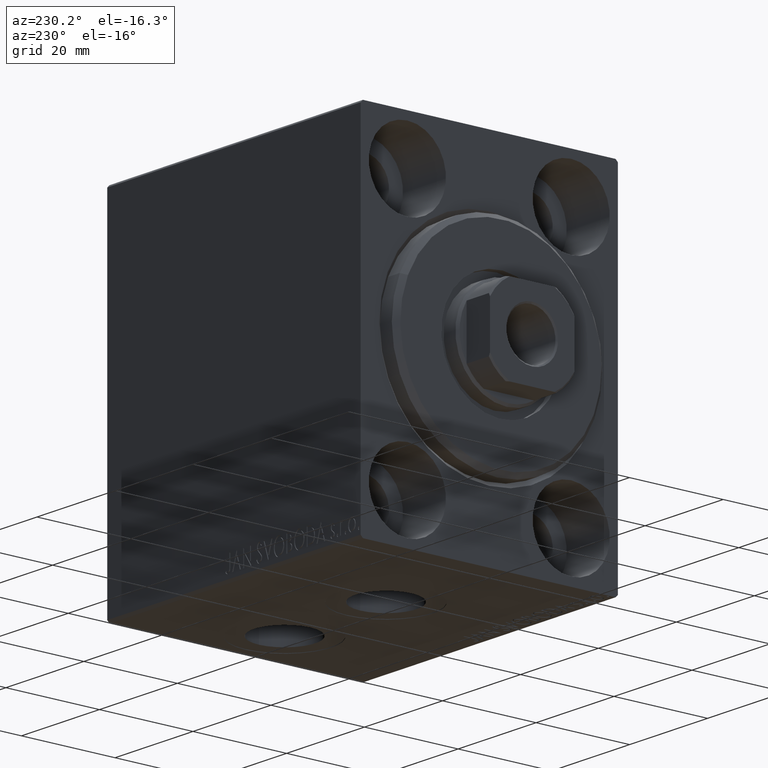
[diagram: clean part render]
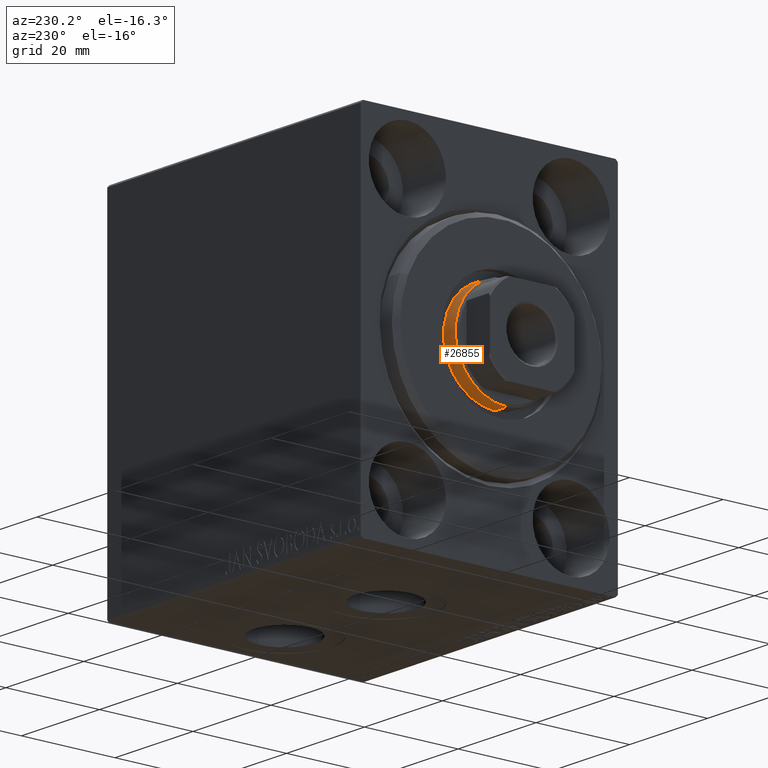
[diagram: same view with one face highlighted and labeled with its STEP entity id]
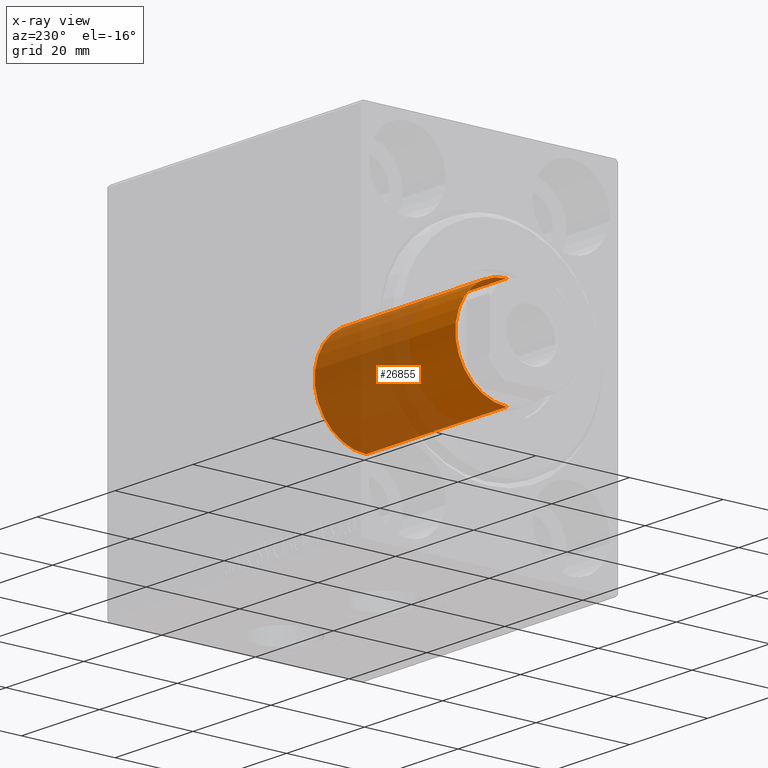
[diagram: x-ray of the same camera — body ghosted, the highlighted face saturated]
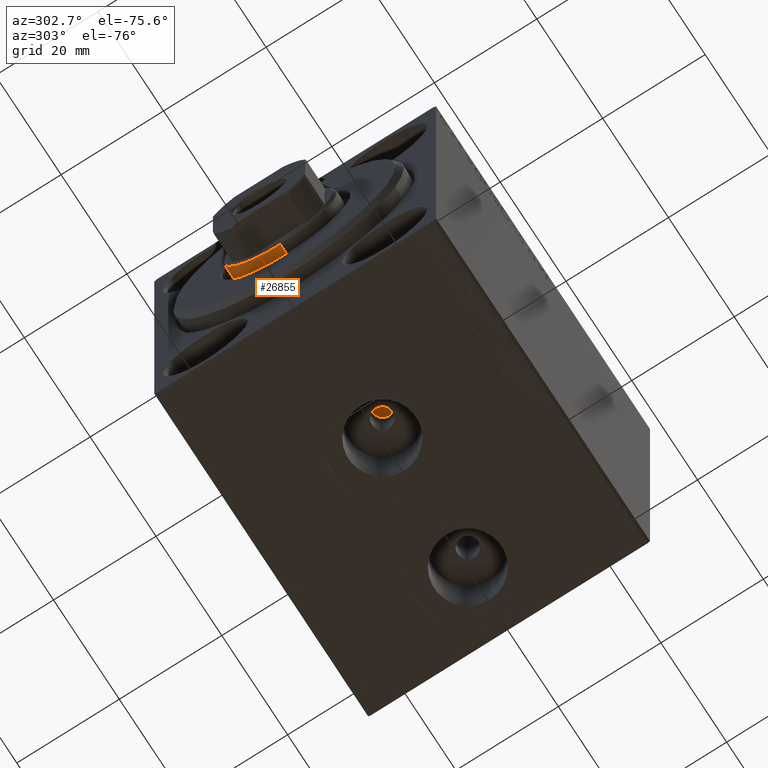
[diagram: same view with one face highlighted and labeled with its STEP entity id]
A machine part, auxiliary view. The second image highlights one B-rep face of the part: STEP entity #26855.
The next image is the same camera in x-ray: the body ghosted, the highlighted face saturated — about 67% of this face is hidden behind the body in this view.
A second angle (auxiliary view) of the same face is appended — the face is thin or edge-on in the first view.
In plain terms, the highlighted cylindrical surface (partial cylindrical patch) has radius 11 mm, axis along (1, -0, -0).
Its self-contained STEP definition (entity closure, byte-faithful):
#606 = VERTEX_POINT ( 'NONE', #40750 ) ;
#1777 = EDGE_CURVE ( 'NONE', #42639, #606, #6188, .T. ) ;
#2431 = CARTESIAN_POINT ( 'NONE',  ( 11.00000000000000000, 1.347111479062088405E-15, 19.39999999999999858 ) ) ;
#3987 = DIRECTION ( 'NONE',  ( 0.000000000000000000, 0.000000000000000000, -1.000000000000000000 ) ) ;
#5837 = CIRCLE ( 'NONE', #17216, 11.00000000000000000 ) ;
#6188 = CIRCLE ( 'NONE', #31060, 11.00000000000000000 ) ;
#6231 = VECTOR ( 'NONE', #33832, 1000.000000000000000 ) ;
#7328 = CARTESIAN_POINT ( 'NONE',  ( 0.000000000000000000, 0.000000000000000000, 55.50000000000000000 ) ) ;
#10939 = ORIENTED_EDGE ( 'NONE', *, *, #33636, .F. ) ;
#13400 = VERTEX_POINT ( 'NONE', #2431 ) ;
#14653 = EDGE_CURVE ( 'NONE', #606, #13400, #36767, .T. ) ;
#15255 = CYLINDRICAL_SURFACE ( 'NONE', #16714, 11.00000000000000000 ) ;
#16006 = ORIENTED_EDGE ( 'NONE', *, *, #1777, .T. ) ;
#16714 = AXIS2_PLACEMENT_3D ( 'NONE', #41967, #18393, #38637 ) ;
#17216 = AXIS2_PLACEMENT_3D ( 'NONE', #21418, #34978, #36451 ) ;
#18393 = DIRECTION ( 'NONE',  ( -0.000000000000000000, -0.000000000000000000, -1.000000000000000000 ) ) ;
#21418 = CARTESIAN_POINT ( 'NONE',  ( 0.000000000000000000, 0.000000000000000000, 19.39999999999999858 ) ) ;
#21944 = EDGE_CURVE ( 'NONE', #13400, #42602, #5837, .T. ) ;
#25873 = ORIENTED_EDGE ( 'NONE', *, *, #21944, .T. ) ;
#25965 = EDGE_LOOP ( 'NONE', ( #16006, #28123, #25873, #10939 ) ) ;
#26747 = DIRECTION ( 'NONE',  ( -0.000000000000000000, -0.000000000000000000, -1.000000000000000000 ) ) ;
#26855 = ADVANCED_FACE ( 'NONE', ( #32173 ), #15255, .T. ) ;
#27736 = VECTOR ( 'NONE', #26747, 1000.000000000000000 ) ;
#27801 = DIRECTION ( 'NONE',  ( 1.000000000000000000, 0.000000000000000000, 0.000000000000000000 ) ) ;
#28123 = ORIENTED_EDGE ( 'NONE', *, *, #14653, .T. ) ;
#31060 = AXIS2_PLACEMENT_3D ( 'NONE', #7328, #3987, #27801 ) ;
#32173 = FACE_OUTER_BOUND ( 'NONE', #25965, .T. ) ;
#33636 = EDGE_CURVE ( 'NONE', #42639, #42602, #43169, .T. ) ;
#33832 = DIRECTION ( 'NONE',  ( -0.000000000000000000, -0.000000000000000000, -1.000000000000000000 ) ) ;
#34978 = DIRECTION ( 'NONE',  ( 0.000000000000000000, 0.000000000000000000, 1.000000000000000000 ) ) ;
#36451 = DIRECTION ( 'NONE',  ( 1.000000000000000000, 0.000000000000000000, 0.000000000000000000 ) ) ;
#36767 = LINE ( 'NONE', #43871, #27736 ) ;
#37179 = CARTESIAN_POINT ( 'NONE',  ( -11.00000000000000000, 0.000000000000000000, 55.99999999999999289 ) ) ;
#38189 = CARTESIAN_POINT ( 'NONE',  ( -11.00000000000000000, 0.000000000000000000, 19.39999999999999858 ) ) ;
#38637 = DIRECTION ( 'NONE',  ( -1.000000000000000000, 0.000000000000000000, 0.000000000000000000 ) ) ;
#38835 = CARTESIAN_POINT ( 'NONE',  ( -11.00000000000000000, 0.000000000000000000, 55.50000000000000000 ) ) ;
#40750 = CARTESIAN_POINT ( 'NONE',  ( 11.00000000000000000, 1.347111479062088405E-15, 55.50000000000000000 ) ) ;
#41967 = CARTESIAN_POINT ( 'NONE',  ( 0.000000000000000000, 0.000000000000000000, 55.99999999999999289 ) ) ;
#42602 = VERTEX_POINT ( 'NONE', #38189 ) ;
#42639 = VERTEX_POINT ( 'NONE', #38835 ) ;
#43169 = LINE ( 'NONE', #37179, #6231 ) ;
#43871 = CARTESIAN_POINT ( 'NONE',  ( 11.00000000000000000, 1.347111479062088405E-15, 55.99999999999999289 ) ) ;